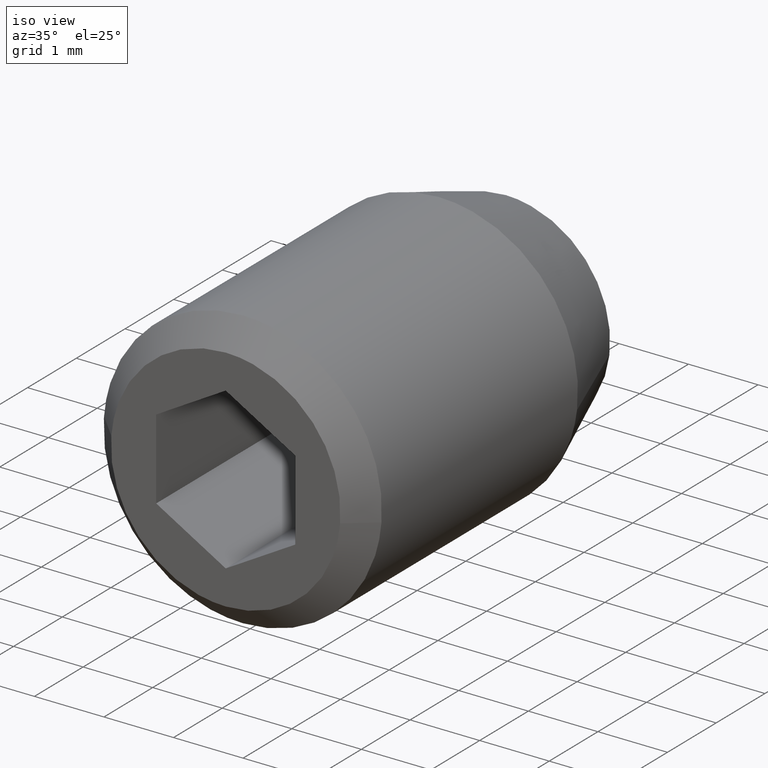
[diagram: clean part render]
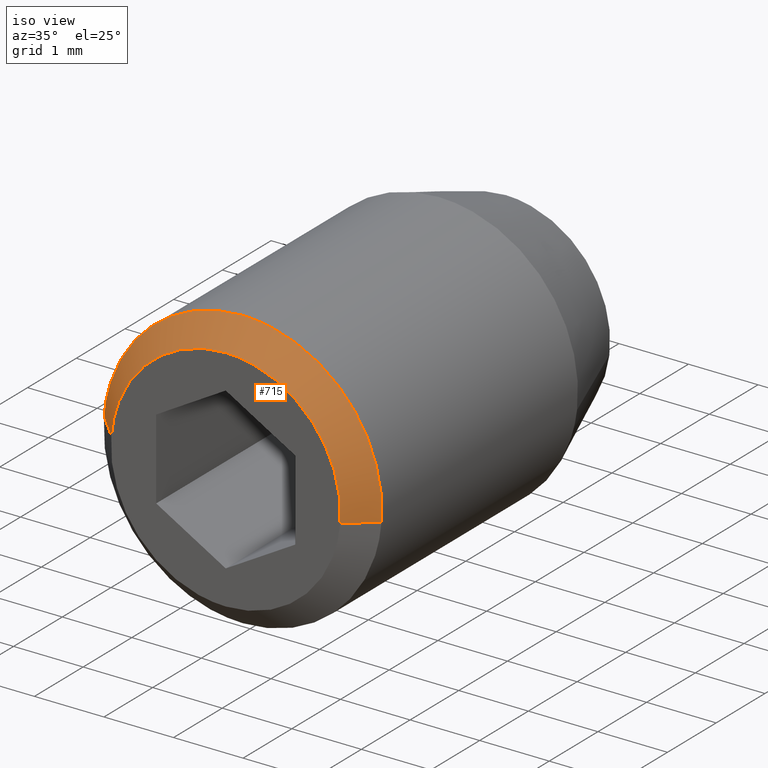
[diagram: same view with one face highlighted and labeled with its STEP entity id]
A machine part, iso view. The second image highlights one B-rep face of the part: STEP entity #715.
In plain terms, the highlighted face is a freeform B-spline surface patch.
Its self-contained STEP definition (entity closure, byte-faithful):
#353=CARTESIAN_POINT('',(-1.993834667755136,-6.149999999649104,0.156918192257462));
#354=VERTEX_POINT('',#353);
#368=CARTESIAN_POINT('',(0.0,-6.150000000000000,2.0));
#369=VERTEX_POINT('',#368);
#370=CARTESIAN_POINT('',(0.0,-6.150000000000000,2.0));
#371=CARTESIAN_POINT('',(-1.848780981876145,-6.150000000000001,2.000000000000000));
#372=CARTESIAN_POINT('',(-1.993834667755136,-6.149999999649105,0.156918192257462));
#380=(BOUNDED_CURVE()B_SPLINE_CURVE(2,(#370,#371,#372),.UNSPECIFIED.,.F.,.U.)B_SPLINE_CURVE_WITH_KNOTS((3,3),(0.500000000000000,0.736331300499633),.UNSPECIFIED.)CURVE()GEOMETRIC_REPRESENTATION_ITEM()RATIONAL_B_SPLINE_CURVE((1.0,0.723120658761173,0.969723355893974))REPRESENTATION_ITEM(''));
#381=EDGE_CURVE('',#369,#354,#380,.T.);
#383=CARTESIAN_POINT('',(1.993834667755136,-6.149999999649104,-0.156918192257463));
#384=VERTEX_POINT('',#383);
#385=CARTESIAN_POINT('',(1.993834667755136,-6.149999999649105,-0.156918192257463));
#386=CARTESIAN_POINT('',(2.000000000000000,-6.150000000000000,-0.078580214793174));
#387=CARTESIAN_POINT('',(2.0,-6.150000000000000,-4.439198E-016));
#388=CARTESIAN_POINT('',(2.000000000000000,-6.150000000000002,2.000000000000000));
#389=CARTESIAN_POINT('',(0.0,-6.150000000000000,2.0));
#397=(BOUNDED_CURVE()B_SPLINE_CURVE(2,(#385,#386,#387,#388,#389),.UNSPECIFIED.,.F.,.U.)B_SPLINE_CURVE_WITH_KNOTS((3,2,3),(0.236331300499633,0.250000000000000,0.500000000000000),.UNSPECIFIED.)CURVE()GEOMETRIC_REPRESENTATION_ITEM()RATIONAL_B_SPLINE_CURVE((0.969723355893974,0.983986122425374,1.0,0.707106781186548,1.0))REPRESENTATION_ITEM(''));
#398=EDGE_CURVE('',#384,#369,#397,.T.);
#612=CARTESIAN_POINT('',(1.644913600659771,-6.499999999999707,-0.129457507953156));
#613=VERTEX_POINT('',#612);
#627=CARTESIAN_POINT('',(-1.644913600659772,-6.499999999999707,0.129457507953154));
#628=VERTEX_POINT('',#627);
#644=CARTESIAN_POINT('',(-1.644913600659772,-6.499999999999707,0.129457507953154));
#645=CARTESIAN_POINT('',(-1.993834667755136,-6.149999999649104,0.156918192257462));
#646=QUASI_UNIFORM_CURVE('',1,(#644,#645),.UNSPECIFIED.,.F.,.U.);
#647=EDGE_CURVE('',#628,#354,#646,.T.);
#653=CARTESIAN_POINT('',(1.644913600659771,-6.499999999999707,-0.129457507953156));
#654=CARTESIAN_POINT('',(1.993834667755136,-6.149999999649104,-0.156918192257463));
#655=QUASI_UNIFORM_CURVE('',1,(#653,#654),.UNSPECIFIED.,.F.,.U.);
#656=EDGE_CURVE('',#613,#384,#655,.T.);
#661=CARTESIAN_POINT('',(-1.636190573989475,-6.508750000000001,0.128770990863324));
#662=CARTESIAN_POINT('',(-1.507419583126149,-6.508750000000000,1.764961564852799));
#663=CARTESIAN_POINT('',(0.128770990863325,-6.508750000000001,1.636190573989474));
#664=CARTESIAN_POINT('',(1.764961564852799,-6.508750000000000,1.507419583126149));
#665=CARTESIAN_POINT('',(1.636190573989475,-6.508750000000001,-0.128770990863325));
#666=CARTESIAN_POINT('',(-2.002775769803176,-6.141031250000000,0.157621871470500));
#667=CARTESIAN_POINT('',(-1.845153898332676,-6.141031250000001,2.160397641273677));
#668=CARTESIAN_POINT('',(0.157621871470500,-6.141031250000000,2.002775769803176));
#669=CARTESIAN_POINT('',(2.160397641273677,-6.141031250000001,1.845153898332675));
#670=CARTESIAN_POINT('',(2.002775769803176,-6.141031250000000,-0.157621871470501));
#678=(BOUNDED_SURFACE()B_SPLINE_SURFACE(2,1,((#661,#666),(#662,#667),(#663,#668),(#664,#669),(#665,#670)),.UNSPECIFIED.,.F.,.F.,.U.)B_SPLINE_SURFACE_WITH_KNOTS((3,2,3),(2,2),(0.0,3.328568410534898,6.657136821069796),(0.0,1.0),.UNSPECIFIED.)GEOMETRIC_REPRESENTATION_ITEM()RATIONAL_B_SPLINE_SURFACE(((1.0,1.0),(0.707106781186548,0.707106781186548),(1.0,1.0),(0.707106781186548,0.707106781186548),(1.0,1.0)))REPRESENTATION_ITEM('')SURFACE());
#679=CARTESIAN_POINT('',(0.0,-6.500000000000000,1.650000000000000));
#680=VERTEX_POINT('',#679);
#681=CARTESIAN_POINT('',(1.644913600659771,-6.499999999999707,-0.129457507953156));
#682=CARTESIAN_POINT('',(1.650000000000000,-6.500000000000000,-0.064828676564854));
#683=CARTESIAN_POINT('',(1.650000000000000,-6.500000000000000,-4.439198E-016));
#684=CARTESIAN_POINT('',(1.649999999999999,-6.500000000000001,1.649999999999999));
#685=CARTESIAN_POINT('',(0.0,-6.500000000000000,1.650000000000000));
#693=(BOUNDED_CURVE()B_SPLINE_CURVE(2,(#681,#682,#683,#684,#685),.UNSPECIFIED.,.F.,.U.)B_SPLINE_CURVE_WITH_KNOTS((3,2,3),(0.236331300632311,0.250000000000000,0.500000000000000),.UNSPECIFIED.)CURVE()GEOMETRIC_REPRESENTATION_ITEM()RATIONAL_B_SPLINE_CURVE((0.969723356170864,0.983986122580816,1.0,0.707106781186548,1.0))REPRESENTATION_ITEM(''));
#694=EDGE_CURVE('',#613,#680,#693,.T.);
#695=ORIENTED_EDGE('',*,*,#694,.F.);
#696=ORIENTED_EDGE('',*,*,#656,.T.);
#697=ORIENTED_EDGE('',*,*,#398,.T.);
#698=ORIENTED_EDGE('',*,*,#381,.T.);
#699=ORIENTED_EDGE('',*,*,#647,.F.);
#700=CARTESIAN_POINT('',(0.0,-6.500000000000000,1.650000000000000));
#701=CARTESIAN_POINT('',(-1.525244311231972,-6.500000000000000,1.650000000000000));
#702=CARTESIAN_POINT('',(-1.644913600659772,-6.499999999999707,0.129457507953154));
#710=(BOUNDED_CURVE()B_SPLINE_CURVE(2,(#700,#701,#702),.UNSPECIFIED.,.F.,.U.)B_SPLINE_CURVE_WITH_KNOTS((3,3),(0.500000000000000,0.736331300632311),.UNSPECIFIED.)CURVE()GEOMETRIC_REPRESENTATION_ITEM()RATIONAL_B_SPLINE_CURVE((1.0,0.723120658605731,0.969723356170864))REPRESENTATION_ITEM(''));
#711=EDGE_CURVE('',#680,#628,#710,.T.);
#712=ORIENTED_EDGE('',*,*,#711,.F.);
#713=EDGE_LOOP('',(#695,#696,#697,#698,#699,#712));
#714=FACE_OUTER_BOUND('',#713,.T.);
#715=ADVANCED_FACE('',(#714),#678,.T.);